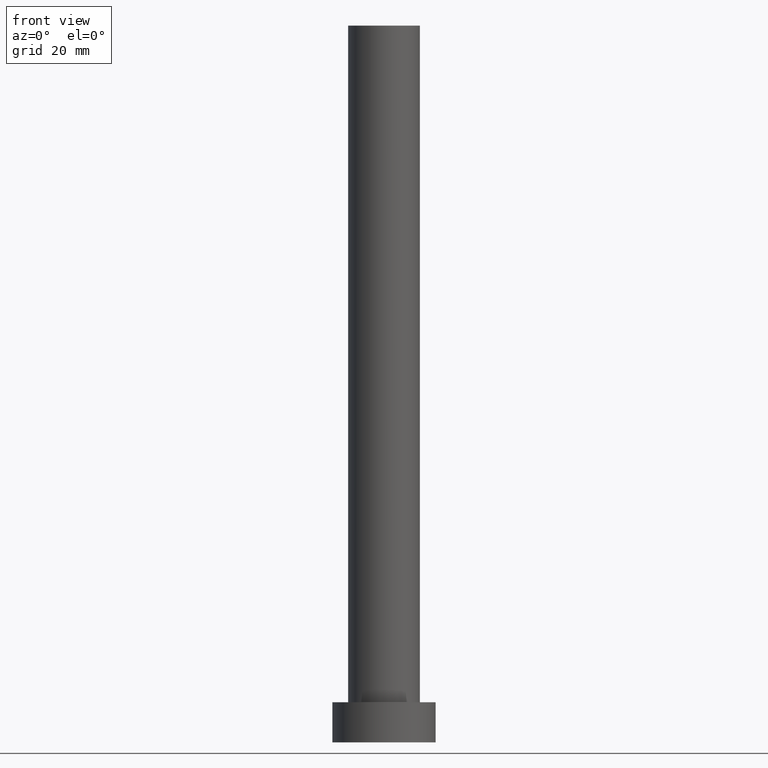
[diagram: clean part render]
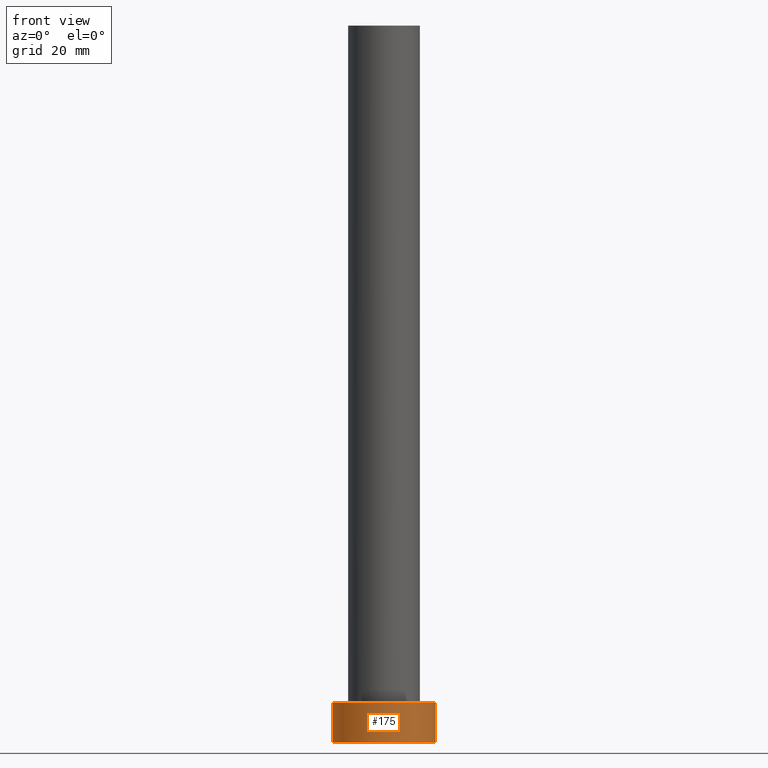
[diagram: same view with one face highlighted and labeled with its STEP entity id]
A machine part, front view. The second image highlights one B-rep face of the part: STEP entity #175.
In plain terms, the highlighted cylindrical surface (partial cylindrical patch) has radius 9 mm, axis along (-0, -0, -1).
Its self-contained STEP definition (entity closure, byte-faithful):
#10 = CARTESIAN_POINT ( 'NONE',  ( 9.000000000000000000, 1.102182119232617714E-15, 0.000000000000000000 ) ) ;
#12 = ORIENTED_EDGE ( 'NONE', *, *, #186, .T. ) ;
#14 = VECTOR ( 'NONE', #119, 1000.000000000000000 ) ;
#15 = CARTESIAN_POINT ( 'NONE',  ( -9.000000000000000000, 0.000000000000000000, 7.000000000000000000 ) ) ;
#16 = CYLINDRICAL_SURFACE ( 'NONE', #31, 9.000000000000000000 ) ;
#24 = VECTOR ( 'NONE', #134, 1000.000000000000000 ) ;
#30 = DIRECTION ( 'NONE',  ( 1.000000000000000000, 0.000000000000000000, 0.000000000000000000 ) ) ;
#31 = AXIS2_PLACEMENT_3D ( 'NONE', #244, #94, #135 ) ;
#33 = FACE_OUTER_BOUND ( 'NONE', #42, .T. ) ;
#42 = EDGE_LOOP ( 'NONE', ( #132, #63, #12, #136 ) ) ;
#49 = CIRCLE ( 'NONE', #90, 9.000000000000000000 ) ;
#63 = ORIENTED_EDGE ( 'NONE', *, *, #144, .F. ) ;
#67 = VERTEX_POINT ( 'NONE', #167 ) ;
#69 = EDGE_CURVE ( 'NONE', #235, #165, #49, .T. ) ;
#90 = AXIS2_PLACEMENT_3D ( 'NONE', #239, #209, #30 ) ;
#94 = DIRECTION ( 'NONE',  ( -0.000000000000000000, -0.000000000000000000, -1.000000000000000000 ) ) ;
#119 = DIRECTION ( 'NONE',  ( -0.000000000000000000, -0.000000000000000000, -1.000000000000000000 ) ) ;
#120 = CARTESIAN_POINT ( 'NONE',  ( 9.000000000000000000, 1.102182119232617714E-15, 7.000000000000000000 ) ) ;
#130 = AXIS2_PLACEMENT_3D ( 'NONE', #141, #154, #227 ) ;
#132 = ORIENTED_EDGE ( 'NONE', *, *, #148, .F. ) ;
#134 = DIRECTION ( 'NONE',  ( -0.000000000000000000, -0.000000000000000000, -1.000000000000000000 ) ) ;
#135 = DIRECTION ( 'NONE',  ( -1.000000000000000000, 0.000000000000000000, 0.000000000000000000 ) ) ;
#136 = ORIENTED_EDGE ( 'NONE', *, *, #69, .T. ) ;
#141 = CARTESIAN_POINT ( 'NONE',  ( 0.000000000000000000, 0.000000000000000000, 7.000000000000000000 ) ) ;
#144 = EDGE_CURVE ( 'NONE', #67, #193, #151, .T. ) ;
#148 = EDGE_CURVE ( 'NONE', #193, #165, #215, .T. ) ;
#151 = CIRCLE ( 'NONE', #130, 9.000000000000000000 ) ;
#154 = DIRECTION ( 'NONE',  ( 0.000000000000000000, 0.000000000000000000, 1.000000000000000000 ) ) ;
#157 = LINE ( 'NONE', #15, #24 ) ;
#165 = VERTEX_POINT ( 'NONE', #10 ) ;
#167 = CARTESIAN_POINT ( 'NONE',  ( -9.000000000000000000, 0.000000000000000000, 7.000000000000000000 ) ) ;
#175 = ADVANCED_FACE ( 'NONE', ( #33 ), #16, .T. ) ;
#186 = EDGE_CURVE ( 'NONE', #67, #235, #157, .T. ) ;
#193 = VERTEX_POINT ( 'NONE', #226 ) ;
#209 = DIRECTION ( 'NONE',  ( 0.000000000000000000, 0.000000000000000000, 1.000000000000000000 ) ) ;
#215 = LINE ( 'NONE', #120, #14 ) ;
#226 = CARTESIAN_POINT ( 'NONE',  ( 9.000000000000000000, 1.102182119232617714E-15, 7.000000000000000000 ) ) ;
#227 = DIRECTION ( 'NONE',  ( 1.000000000000000000, 0.000000000000000000, 0.000000000000000000 ) ) ;
#235 = VERTEX_POINT ( 'NONE', #246 ) ;
#239 = CARTESIAN_POINT ( 'NONE',  ( 0.000000000000000000, 0.000000000000000000, 0.000000000000000000 ) ) ;
#244 = CARTESIAN_POINT ( 'NONE',  ( 0.000000000000000000, 0.000000000000000000, 7.000000000000000000 ) ) ;
#246 = CARTESIAN_POINT ( 'NONE',  ( -9.000000000000000000, 0.000000000000000000, 0.000000000000000000 ) ) ;